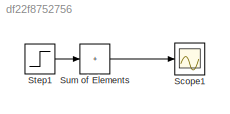
MODEL slx_df22f8752756
KIND model
CONFIG AbsTol = auto
CONFIG EnableMultiTasking = off
CONFIG FixedStep = auto
CONFIG MaxStep = auto
CONFIG MinStep = auto
CONFIG RelTol = 1e-3
CONFIG SampleTimeConstraint = Unconstrained
CONFIG SolverName = VariableStepAuto
CONFIG StartTime = 0.0
CONFIG StopTime = 5000
BLOCK [Scope] Scope1
  Floating = off
  NumInputPorts = 1
  ScopeSpecificationString = Simulink.scopes.TimeScopeBlockCfg('CurrentConfiguration', extmgr.ConfigurationSet(extmgr.Configuration('Core','General UI',true),extmgr.Configuration('Core','Source UI',true),extmgr.Configuration('Sources','WiredSimulink',true,'DataLogging',true,'DataLoggingSaveFormat','Array'),extmgr.Configuration('Visuals','Time Domain',true,'SerializedDisplays',{struct('MinYLimReal','21.25','MaxYLimReal','108.7...<+1456ch>
BLOCK [Step] Step1
  After = [50, 20, 20, -20, -20, -20,  30, 40, -40,-30, 50, 20];
  Before = [30, 0,0,0,0, 0,0,0,0,0,0,0]
  SampleTime = 0
  Time = [250, 500,750,1000,1250,1500,1750,2000,2250,2500,2750,3000]
BLOCK [Sum] Sum of Elements
  IconShape = rectangular
  Inputs = +
LINE Step1:1 -> Sum of Elements:1
LINE Sum of Elements:1 -> Scope1:1
